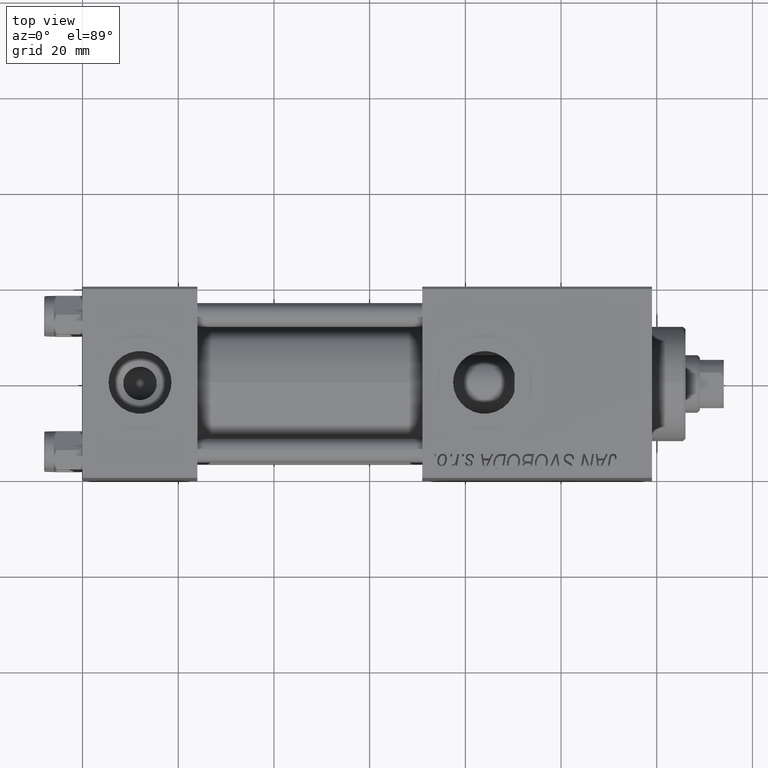
[diagram: clean part render]
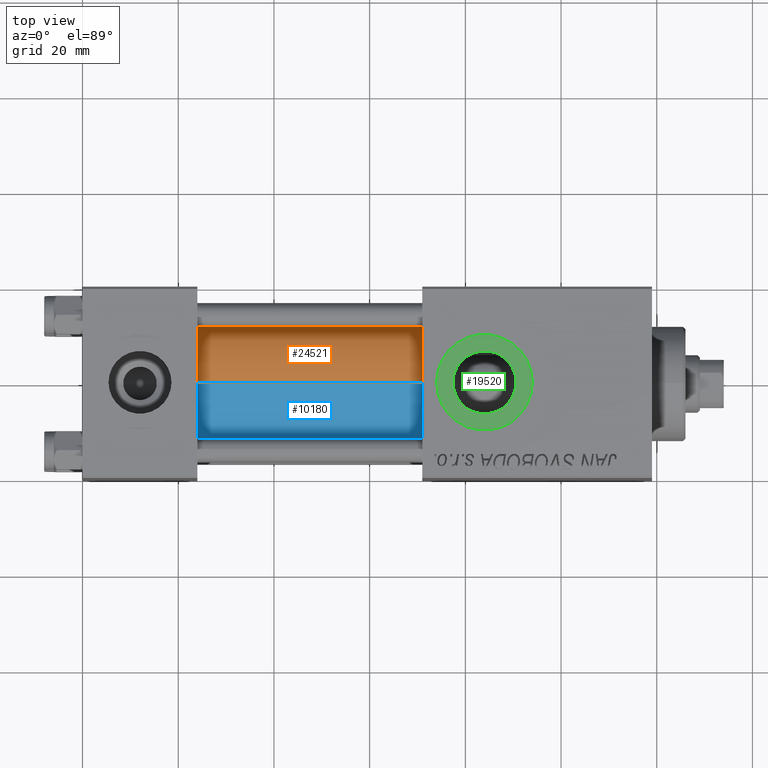
[diagram: same view with three faces highlighted in distinct colors, each labeled with its STEP entity id]
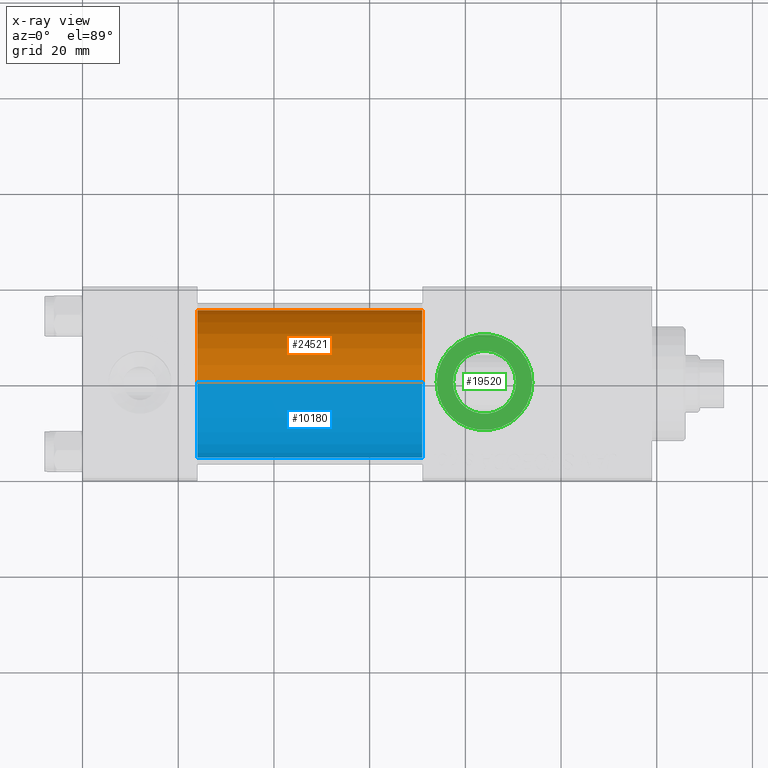
[diagram: x-ray of the same camera — body ghosted, the three highlighted faces saturated]
A machine part, top view with three faces highlighted in distinct colors.
The next image is the same camera in x-ray (body ghosted, the three faces saturated) — at least one of them is partly hidden behind the body in this view.
Their STEP definitions:

[orange] entity #24521 — the highlighted cylindrical surface (partial cylindrical patch) has radius 15.5 mm, axis along (-1, -0, -0).
#569 = CARTESIAN_POINT ( 'NONE',  ( 24.00000000000000000, -2.602085213965210642E-15, 15.50000000000000000 ) ) ;
#1577 = AXIS2_PLACEMENT_3D ( 'NONE', #20643, #26847, #30404 ) ;
#2233 = DIRECTION ( 'NONE',  ( -1.000000000000000000, -0.000000000000000000, -0.000000000000000000 ) ) ;
#3207 = CIRCLE ( 'NONE', #1577, 15.50000000000000000 ) ;
#5139 = VERTEX_POINT ( 'NONE', #17494 ) ;
#5850 = CARTESIAN_POINT ( 'NONE',  ( 71.00000000000001421, -2.602085213965210642E-15, 0.000000000000000000 ) ) ;
#6598 = EDGE_CURVE ( 'NONE', #34429, #43716, #48904, .T. ) ;
#7281 = DIRECTION ( 'NONE',  ( -1.000000000000000000, -0.000000000000000000, -0.000000000000000000 ) ) ;
#9368 = CARTESIAN_POINT ( 'NONE',  ( 71.00000000000001421, -2.602085213965210642E-15, 15.50000000000000000 ) ) ;
#10607 = ORIENTED_EDGE ( 'NONE', *, *, #6598, .T. ) ;
#14880 = CARTESIAN_POINT ( 'NONE',  ( 71.00000000000001421, -2.602085213965210642E-15, 0.000000000000000000 ) ) ;
#15807 = EDGE_CURVE ( 'NONE', #5139, #22406, #20545, .T. ) ;
#17494 = CARTESIAN_POINT ( 'NONE',  ( 71.00000000000001421, -2.602085213965210642E-15, 15.50000000000000000 ) ) ;
#18064 = VECTOR ( 'NONE', #2233, 1000.000000000000000 ) ;
#20545 = LINE ( 'NONE', #9368, #18064 ) ;
#20575 = DIRECTION ( 'NONE',  ( 1.000000000000000000, 0.000000000000000000, 0.000000000000000000 ) ) ;
#20643 = CARTESIAN_POINT ( 'NONE',  ( 24.00000000000000000, -2.602085213965210642E-15, 0.000000000000000000 ) ) ;
#22406 = VERTEX_POINT ( 'NONE', #569 ) ;
#22772 = DIRECTION ( 'NONE',  ( 0.000000000000000000, 0.000000000000000000, 1.000000000000000000 ) ) ;
#24521 = ADVANCED_FACE ( 'NONE', ( #45897 ), #49469, .T. ) ;
#24862 = CARTESIAN_POINT ( 'NONE',  ( 71.00000000000001421, -7.038826752868131828E-16, -15.50000000000000000 ) ) ;
#25785 = AXIS2_PLACEMENT_3D ( 'NONE', #5850, #20575, #32773 ) ;
#26131 = EDGE_LOOP ( 'NONE', ( #33609, #10607, #35346, #38797 ) ) ;
#26847 = DIRECTION ( 'NONE',  ( 1.000000000000000000, 0.000000000000000000, 0.000000000000000000 ) ) ;
#28300 = VECTOR ( 'NONE', #45340, 1000.000000000000000 ) ;
#29576 = CARTESIAN_POINT ( 'NONE',  ( 71.00000000000001421, -7.038826752868131828E-16, -15.50000000000000000 ) ) ;
#30404 = DIRECTION ( 'NONE',  ( 0.000000000000000000, 0.000000000000000000, 1.000000000000000000 ) ) ;
#32773 = DIRECTION ( 'NONE',  ( 0.000000000000000000, 0.000000000000000000, -1.000000000000000000 ) ) ;
#33609 = ORIENTED_EDGE ( 'NONE', *, *, #36168, .F. ) ;
#34429 = VERTEX_POINT ( 'NONE', #24862 ) ;
#35346 = ORIENTED_EDGE ( 'NONE', *, *, #40359, .T. ) ;
#36168 = EDGE_CURVE ( 'NONE', #34429, #5139, #50131, .T. ) ;
#37721 = AXIS2_PLACEMENT_3D ( 'NONE', #14880, #7281, #22772 ) ;
#38797 = ORIENTED_EDGE ( 'NONE', *, *, #15807, .F. ) ;
#40359 = EDGE_CURVE ( 'NONE', #43716, #22406, #3207, .T. ) ;
#43716 = VERTEX_POINT ( 'NONE', #49422 ) ;
#45340 = DIRECTION ( 'NONE',  ( -1.000000000000000000, -0.000000000000000000, -0.000000000000000000 ) ) ;
#45897 = FACE_OUTER_BOUND ( 'NONE', #26131, .T. ) ;
#48904 = LINE ( 'NONE', #29576, #28300 ) ;
#49422 = CARTESIAN_POINT ( 'NONE',  ( 24.00000000000000000, -7.038826752868131828E-16, -15.50000000000000000 ) ) ;
#49469 = CYLINDRICAL_SURFACE ( 'NONE', #37721, 15.50000000000000000 ) ;
#50131 = CIRCLE ( 'NONE', #25785, 15.50000000000000000 ) ;

[blue] entity #10180 — the highlighted cylindrical surface (partial cylindrical patch) has radius 15.5 mm, axis along (-1, -0, -0).
#569 = CARTESIAN_POINT ( 'NONE',  ( 24.00000000000000000, -2.602085213965210642E-15, 15.50000000000000000 ) ) ;
#826 = AXIS2_PLACEMENT_3D ( 'NONE', #5660, #32336, #17322 ) ;
#2233 = DIRECTION ( 'NONE',  ( -1.000000000000000000, -0.000000000000000000, -0.000000000000000000 ) ) ;
#2849 = DIRECTION ( 'NONE',  ( 1.000000000000000000, 0.000000000000000000, 0.000000000000000000 ) ) ;
#5139 = VERTEX_POINT ( 'NONE', #17494 ) ;
#5660 = CARTESIAN_POINT ( 'NONE',  ( 71.00000000000001421, -2.602085213965210642E-15, 0.000000000000000000 ) ) ;
#6598 = EDGE_CURVE ( 'NONE', #34429, #43716, #48904, .T. ) ;
#6921 = DIRECTION ( 'NONE',  ( 0.000000000000000000, 0.000000000000000000, 1.000000000000000000 ) ) ;
#7290 = ORIENTED_EDGE ( 'NONE', *, *, #15807, .T. ) ;
#8973 = FACE_OUTER_BOUND ( 'NONE', #25348, .T. ) ;
#9368 = CARTESIAN_POINT ( 'NONE',  ( 71.00000000000001421, -2.602085213965210642E-15, 15.50000000000000000 ) ) ;
#10180 = ADVANCED_FACE ( 'NONE', ( #8973 ), #44783, .T. ) ;
#10768 = CIRCLE ( 'NONE', #37587, 15.50000000000000000 ) ;
#12114 = ORIENTED_EDGE ( 'NONE', *, *, #35370, .F. ) ;
#15807 = EDGE_CURVE ( 'NONE', #5139, #22406, #20545, .T. ) ;
#16398 = ORIENTED_EDGE ( 'NONE', *, *, #20173, .T. ) ;
#17322 = DIRECTION ( 'NONE',  ( 0.000000000000000000, 0.000000000000000000, 1.000000000000000000 ) ) ;
#17494 = CARTESIAN_POINT ( 'NONE',  ( 71.00000000000001421, -2.602085213965210642E-15, 15.50000000000000000 ) ) ;
#18064 = VECTOR ( 'NONE', #2233, 1000.000000000000000 ) ;
#20173 = EDGE_CURVE ( 'NONE', #22406, #43716, #10768, .T. ) ;
#20545 = LINE ( 'NONE', #9368, #18064 ) ;
#20909 = CIRCLE ( 'NONE', #21717, 15.50000000000000000 ) ;
#21717 = AXIS2_PLACEMENT_3D ( 'NONE', #47533, #32768, #44204 ) ;
#22406 = VERTEX_POINT ( 'NONE', #569 ) ;
#24862 = CARTESIAN_POINT ( 'NONE',  ( 71.00000000000001421, -7.038826752868131828E-16, -15.50000000000000000 ) ) ;
#25348 = EDGE_LOOP ( 'NONE', ( #32197, #12114, #7290, #16398 ) ) ;
#28300 = VECTOR ( 'NONE', #45340, 1000.000000000000000 ) ;
#29576 = CARTESIAN_POINT ( 'NONE',  ( 71.00000000000001421, -7.038826752868131828E-16, -15.50000000000000000 ) ) ;
#32197 = ORIENTED_EDGE ( 'NONE', *, *, #6598, .F. ) ;
#32336 = DIRECTION ( 'NONE',  ( -1.000000000000000000, -0.000000000000000000, -0.000000000000000000 ) ) ;
#32768 = DIRECTION ( 'NONE',  ( 1.000000000000000000, 0.000000000000000000, 0.000000000000000000 ) ) ;
#34429 = VERTEX_POINT ( 'NONE', #24862 ) ;
#35370 = EDGE_CURVE ( 'NONE', #5139, #34429, #20909, .T. ) ;
#37587 = AXIS2_PLACEMENT_3D ( 'NONE', #41743, #2849, #6921 ) ;
#41743 = CARTESIAN_POINT ( 'NONE',  ( 24.00000000000000000, -2.602085213965210642E-15, 0.000000000000000000 ) ) ;
#43716 = VERTEX_POINT ( 'NONE', #49422 ) ;
#44204 = DIRECTION ( 'NONE',  ( 0.000000000000000000, 0.000000000000000000, -1.000000000000000000 ) ) ;
#44783 = CYLINDRICAL_SURFACE ( 'NONE', #826, 15.50000000000000000 ) ;
#45340 = DIRECTION ( 'NONE',  ( -1.000000000000000000, -0.000000000000000000, -0.000000000000000000 ) ) ;
#47533 = CARTESIAN_POINT ( 'NONE',  ( 71.00000000000001421, -2.602085213965210642E-15, 0.000000000000000000 ) ) ;
#48904 = LINE ( 'NONE', #29576, #28300 ) ;
#49422 = CARTESIAN_POINT ( 'NONE',  ( 24.00000000000000000, -7.038826752868131828E-16, -15.50000000000000000 ) ) ;

[green] entity #19520 — the highlighted planar face has unit normal (0, 0, 1).
#1236 = CARTESIAN_POINT ( 'NONE',  ( 84.00000000000000000, -1.734723475976806897E-15, 19.80000000000000071 ) ) ;
#3224 = CARTESIAN_POINT ( 'NONE',  ( 90.58000000000154728, -9.289058821376599092E-16, 19.80000000000000071 ) ) ;
#5702 = ORIENTED_EDGE ( 'NONE', *, *, #45572, .T. ) ;
#6549 = CARTESIAN_POINT ( 'NONE',  ( 84.00000000000000000, -1.734723475976806897E-15, 19.80000000000000071 ) ) ;
#9628 = DIRECTION ( 'NONE',  ( 1.000000000000000000, 0.000000000000000000, 0.000000000000000000 ) ) ;
#12705 = VERTEX_POINT ( 'NONE', #19666 ) ;
#12719 = DIRECTION ( 'NONE',  ( 0.000000000000000000, 0.000000000000000000, 1.000000000000000000 ) ) ;
#13686 = DIRECTION ( 'NONE',  ( -0.000000000000000000, -0.000000000000000000, -1.000000000000000000 ) ) ;
#14186 = VERTEX_POINT ( 'NONE', #17749 ) ;
#14823 = AXIS2_PLACEMENT_3D ( 'NONE', #1236, #13686, #9628 ) ;
#15623 = DIRECTION ( 'NONE',  ( 0.000000000000000000, 0.000000000000000000, 1.000000000000000000 ) ) ;
#15628 = CIRCLE ( 'NONE', #14823, 6.580000000001542837 ) ;
#15834 = EDGE_CURVE ( 'NONE', #44116, #12705, #15628, .T. ) ;
#16637 = EDGE_CURVE ( 'NONE', #12705, #44116, #45715, .T. ) ;
#16672 = VERTEX_POINT ( 'NONE', #18556 ) ;
#17648 = CIRCLE ( 'NONE', #18445, 10.00000000000154898 ) ;
#17749 = CARTESIAN_POINT ( 'NONE',  ( 94.00000000000154898, -1.734723475976806897E-15, 19.80000000000000071 ) ) ;
#18445 = AXIS2_PLACEMENT_3D ( 'NONE', #35952, #15623, #24006 ) ;
#18556 = CARTESIAN_POINT ( 'NONE',  ( 73.99999999999845102, -5.100766768292640183E-16, 19.80000000000000071 ) ) ;
#19520 = ADVANCED_FACE ( 'NONE', ( #34748, #41615 ), #49243, .T. ) ;
#19666 = CARTESIAN_POINT ( 'NONE',  ( 77.41999999999846693, -1.734723475976806897E-15, 19.80000000000000071 ) ) ;
#20337 = CARTESIAN_POINT ( 'NONE',  ( 84.00000000000000000, -1.734723475976806897E-15, 19.80000000000000071 ) ) ;
#24006 = DIRECTION ( 'NONE',  ( 1.000000000000000000, 0.000000000000000000, 0.000000000000000000 ) ) ;
#24476 = ORIENTED_EDGE ( 'NONE', *, *, #15834, .T. ) ;
#27823 = AXIS2_PLACEMENT_3D ( 'NONE', #6549, #45433, #45925 ) ;
#28901 = CIRCLE ( 'NONE', #36199, 10.00000000000154898 ) ;
#30751 = DIRECTION ( 'NONE',  ( -0.000000000000000000, -0.000000000000000000, -1.000000000000000000 ) ) ;
#34566 = EDGE_LOOP ( 'NONE', ( #5702, #41814 ) ) ;
#34748 = FACE_BOUND ( 'NONE', #45750, .T. ) ;
#35952 = CARTESIAN_POINT ( 'NONE',  ( 84.00000000000000000, -1.734723475976806897E-15, 19.80000000000000071 ) ) ;
#36199 = AXIS2_PLACEMENT_3D ( 'NONE', #20337, #12719, #43471 ) ;
#37190 = ORIENTED_EDGE ( 'NONE', *, *, #16637, .T. ) ;
#41615 = FACE_OUTER_BOUND ( 'NONE', #34566, .T. ) ;
#41652 = AXIS2_PLACEMENT_3D ( 'NONE', #50066, #30751, #45262 ) ;
#41814 = ORIENTED_EDGE ( 'NONE', *, *, #48791, .T. ) ;
#43471 = DIRECTION ( 'NONE',  ( 1.000000000000000000, 0.000000000000000000, 0.000000000000000000 ) ) ;
#44116 = VERTEX_POINT ( 'NONE', #3224 ) ;
#45262 = DIRECTION ( 'NONE',  ( 1.000000000000000000, 0.000000000000000000, 0.000000000000000000 ) ) ;
#45433 = DIRECTION ( 'NONE',  ( 0.000000000000000000, 0.000000000000000000, 1.000000000000000000 ) ) ;
#45572 = EDGE_CURVE ( 'NONE', #14186, #16672, #28901, .T. ) ;
#45715 = CIRCLE ( 'NONE', #41652, 6.580000000001542837 ) ;
#45750 = EDGE_LOOP ( 'NONE', ( #37190, #24476 ) ) ;
#45925 = DIRECTION ( 'NONE',  ( 1.000000000000000000, 0.000000000000000000, -0.000000000000000000 ) ) ;
#48791 = EDGE_CURVE ( 'NONE', #16672, #14186, #17648, .T. ) ;
#49243 = PLANE ( 'NONE',  #27823 ) ;
#50066 = CARTESIAN_POINT ( 'NONE',  ( 84.00000000000000000, -1.734723475976806897E-15, 19.80000000000000071 ) ) ;